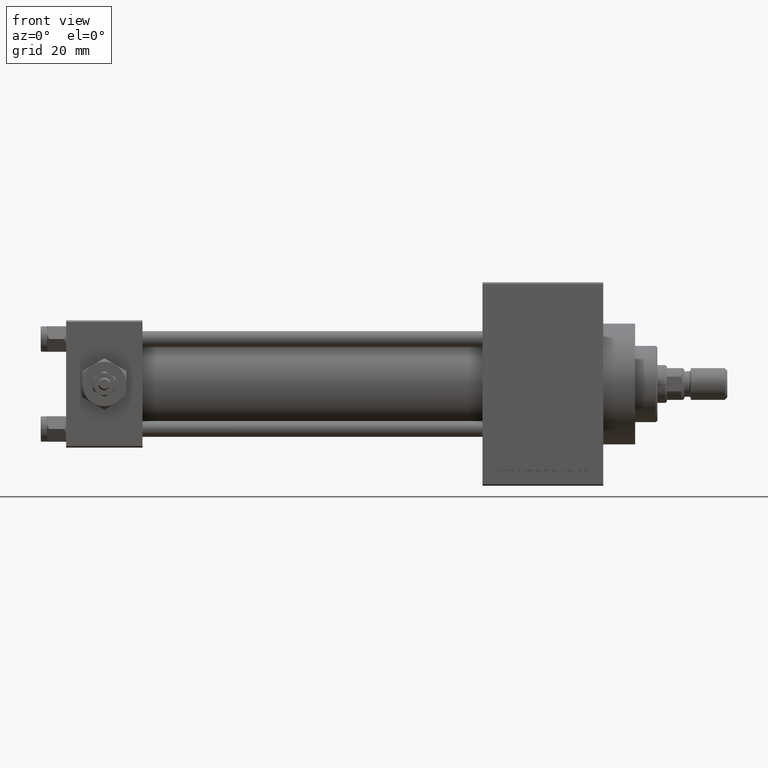
[diagram: clean part render]
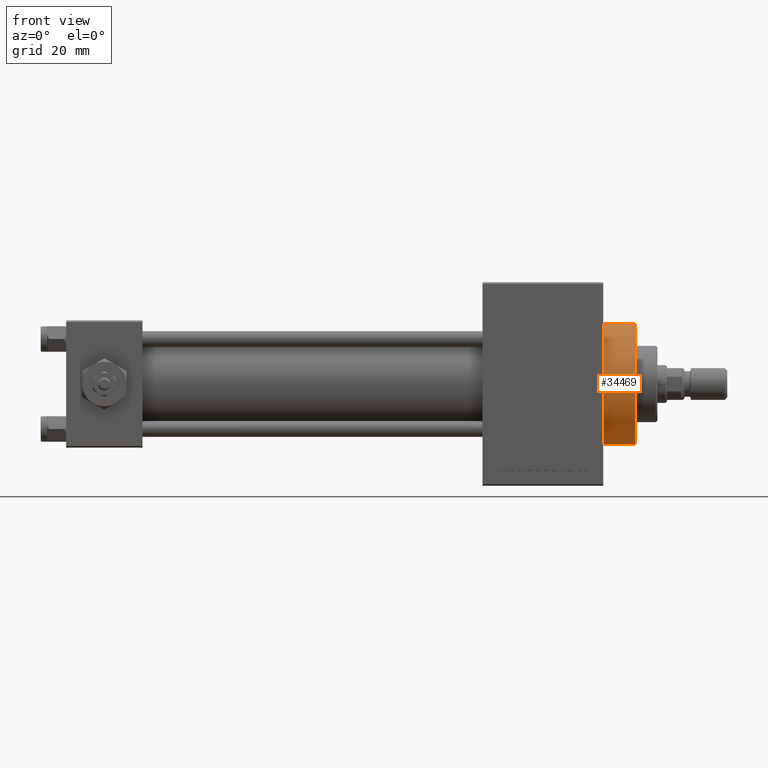
[diagram: same view with one face highlighted and labeled with its STEP entity id]
A machine part, front view. The second image highlights one B-rep face of the part: STEP entity #34469.
In plain terms, the highlighted cylindrical surface (partial cylindrical patch) has radius 19 mm, axis along (-1, -0, -0).
Its self-contained STEP definition (entity closure, byte-faithful):
#864 = VERTEX_POINT ( 'NONE', #4887 ) ;
#1489 = AXIS2_PLACEMENT_3D ( 'NONE', #13278, #13775, #40507 ) ;
#3265 = AXIS2_PLACEMENT_3D ( 'NONE', #9687, #13930, #6175 ) ;
#3676 = EDGE_CURVE ( 'NONE', #864, #35751, #23062, .T. ) ;
#4887 = CARTESIAN_POINT ( 'NONE',  ( 179.0000000000000284, 0.000000000000000000, 19.00000000000000000 ) ) ;
#6175 = DIRECTION ( 'NONE',  ( 0.000000000000000000, 0.000000000000000000, 1.000000000000000000 ) ) ;
#8104 = EDGE_CURVE ( 'NONE', #35751, #20142, #33982, .T. ) ;
#8795 = CARTESIAN_POINT ( 'NONE',  ( 179.0000000000000284, 0.000000000000000000, 19.00000000000000000 ) ) ;
#9008 = ORIENTED_EDGE ( 'NONE', *, *, #19478, .T. ) ;
#9040 = LINE ( 'NONE', #8795, #38171 ) ;
#9687 = CARTESIAN_POINT ( 'NONE',  ( 179.0000000000000284, 0.000000000000000000, 0.000000000000000000 ) ) ;
#10335 = ORIENTED_EDGE ( 'NONE', *, *, #8104, .F. ) ;
#10743 = DIRECTION ( 'NONE',  ( -1.000000000000000000, -0.000000000000000000, -0.000000000000000000 ) ) ;
#13042 = CARTESIAN_POINT ( 'NONE',  ( 169.0000000000000000, 2.326828918379970970E-15, -19.00000000000000000 ) ) ;
#13278 = CARTESIAN_POINT ( 'NONE',  ( 179.0000000000000284, 0.000000000000000000, 0.000000000000000000 ) ) ;
#13775 = DIRECTION ( 'NONE',  ( 1.000000000000000000, 0.000000000000000000, 0.000000000000000000 ) ) ;
#13930 = DIRECTION ( 'NONE',  ( -1.000000000000000000, -0.000000000000000000, -0.000000000000000000 ) ) ;
#15463 = CARTESIAN_POINT ( 'NONE',  ( 179.0000000000000284, 2.326828918379970970E-15, -19.00000000000000000 ) ) ;
#16073 = CARTESIAN_POINT ( 'NONE',  ( 169.0000000000000000, 0.000000000000000000, 19.00000000000000000 ) ) ;
#16504 = ORIENTED_EDGE ( 'NONE', *, *, #3676, .F. ) ;
#18058 = CARTESIAN_POINT ( 'NONE',  ( 169.0000000000000000, 0.000000000000000000, 0.000000000000000000 ) ) ;
#19478 = EDGE_CURVE ( 'NONE', #864, #36839, #9040, .T. ) ;
#20142 = VERTEX_POINT ( 'NONE', #13042 ) ;
#20360 = VECTOR ( 'NONE', #10743, 1000.000000000000000 ) ;
#23062 = CIRCLE ( 'NONE', #1489, 19.00000000000000000 ) ;
#28285 = CIRCLE ( 'NONE', #37124, 19.00000000000000000 ) ;
#28287 = EDGE_LOOP ( 'NONE', ( #10335, #16504, #9008, #36310 ) ) ;
#33306 = DIRECTION ( 'NONE',  ( 1.000000000000000000, 0.000000000000000000, 0.000000000000000000 ) ) ;
#33982 = LINE ( 'NONE', #15463, #20360 ) ;
#34469 = ADVANCED_FACE ( 'NONE', ( #46916 ), #43420, .T. ) ;
#35194 = DIRECTION ( 'NONE',  ( 0.000000000000000000, 0.000000000000000000, -1.000000000000000000 ) ) ;
#35751 = VERTEX_POINT ( 'NONE', #37364 ) ;
#35775 = DIRECTION ( 'NONE',  ( -1.000000000000000000, -0.000000000000000000, -0.000000000000000000 ) ) ;
#36310 = ORIENTED_EDGE ( 'NONE', *, *, #48518, .T. ) ;
#36839 = VERTEX_POINT ( 'NONE', #16073 ) ;
#37124 = AXIS2_PLACEMENT_3D ( 'NONE', #18058, #33306, #35194 ) ;
#37364 = CARTESIAN_POINT ( 'NONE',  ( 179.0000000000000284, 2.326828918379970970E-15, -19.00000000000000000 ) ) ;
#38171 = VECTOR ( 'NONE', #35775, 1000.000000000000000 ) ;
#40507 = DIRECTION ( 'NONE',  ( 0.000000000000000000, 0.000000000000000000, -1.000000000000000000 ) ) ;
#43420 = CYLINDRICAL_SURFACE ( 'NONE', #3265, 19.00000000000000000 ) ;
#46916 = FACE_OUTER_BOUND ( 'NONE', #28287, .T. ) ;
#48518 = EDGE_CURVE ( 'NONE', #36839, #20142, #28285, .T. ) ;